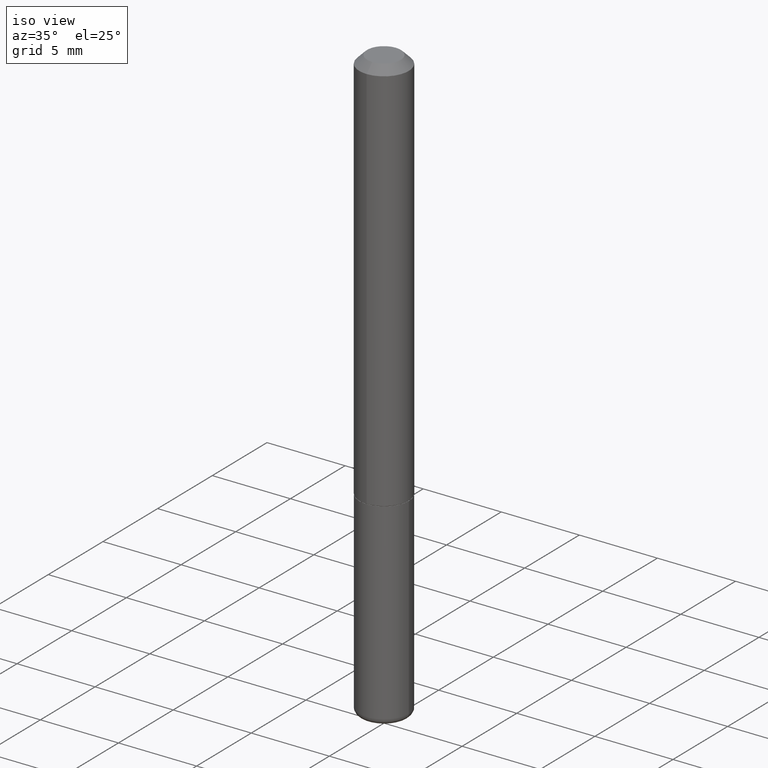
[diagram: clean part render]
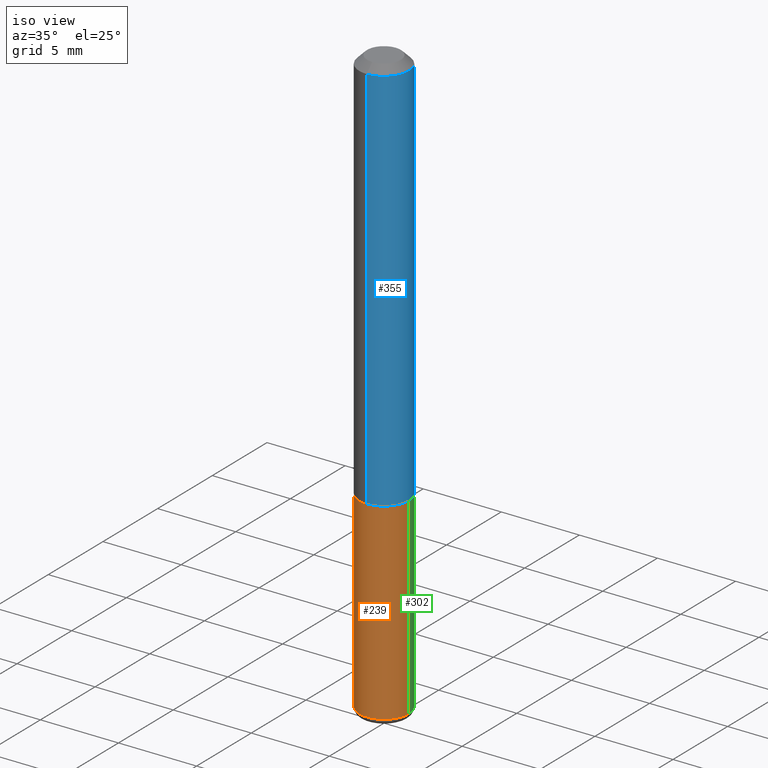
[diagram: same view with three faces highlighted in distinct colors, each labeled with its STEP entity id]
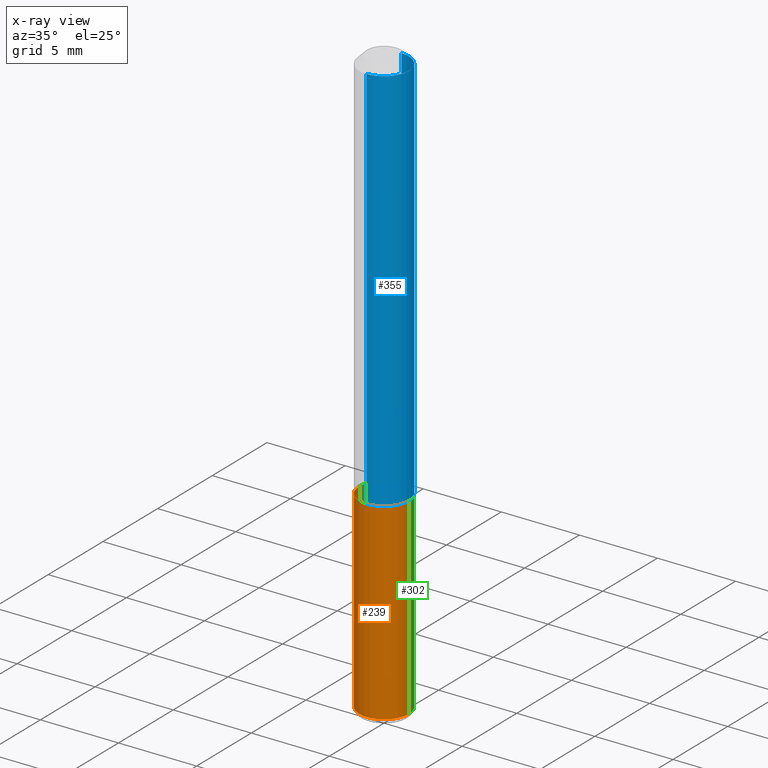
[diagram: x-ray of the same camera — body ghosted, the three highlighted faces saturated]
A machine part, iso view with three faces highlighted in distinct colors.
The next image is the same camera in x-ray (body ghosted, the three faces saturated) — at least one of them is partly hidden behind the body in this view.
Their STEP definitions:

[orange] entity #239 — the highlighted cylindrical surface (edge-blend (fillet) strip) has radius 1.5875 mm, axis along (-0, 0, 1).
#8 = ORIENTED_EDGE ( 'NONE', *, *, #361, .T. ) ;
#23 = DIRECTION ( 'NONE',  ( -2.445468806185136597E-29, 3.491481338843145583E-15, 1.000000000000000000 ) ) ;
#27 = AXIS2_PLACEMENT_3D ( 'NONE', #253, #23, #136 ) ;
#35 = EDGE_CURVE ( 'NONE', #271, #169, #171, .T. ) ;
#75 = AXIS2_PLACEMENT_3D ( 'NONE', #256, #360, #174 ) ;
#78 = EDGE_CURVE ( 'NONE', #290, #169, #199, .T. ) ;
#85 = DIRECTION ( 'NONE',  ( -2.445468806185136877E-29, 3.491481338843145188E-15, 1.000000000000000000 ) ) ;
#103 = ORIENTED_EDGE ( 'NONE', *, *, #284, .F. ) ;
#126 = CARTESIAN_POINT ( 'NONE',  ( -0.06250000000000001388, -4.740760578332009665E-15, -1.485000000000000098 ) ) ;
#133 = DIRECTION ( 'NONE',  ( -2.445468806185136877E-29, 3.491481338843145188E-15, 1.000000000000000000 ) ) ;
#135 = ORIENTED_EDGE ( 'NONE', *, *, #35, .T. ) ;
#136 = DIRECTION ( 'NONE',  ( 1.000000000000000000, -6.982962677686267499E-15, 4.876176775795935793E-29 ) ) ;
#141 = AXIS2_PLACEMENT_3D ( 'NONE', #316, #410, #285 ) ;
#153 = VECTOR ( 'NONE', #133, 39.37007874015748143 ) ;
#162 = VECTOR ( 'NONE', #85, 39.37007874015748143 ) ;
#169 = VERTEX_POINT ( 'NONE', #396 ) ;
#171 = LINE ( 'NONE', #298, #153 ) ;
#174 = DIRECTION ( 'NONE',  ( 1.000000000000000000, -6.982962677686269077E-15, 0.000000000000000000 ) ) ;
#181 = CARTESIAN_POINT ( 'NONE',  ( -0.06250000000000001388, -3.894076353662544935E-15, -0.9999999999999996669 ) ) ;
#199 = CIRCLE ( 'NONE', #75, 0.06250000000000001388 ) ;
#213 = FACE_OUTER_BOUND ( 'NONE', #401, .T. ) ;
#216 = CYLINDRICAL_SURFACE ( 'NONE', #27, 0.06250000000000001388 ) ;
#226 = CIRCLE ( 'NONE', #141, 0.06250000000000001388 ) ;
#239 = ADVANCED_FACE ( 'NONE', ( #213 ), #216, .T. ) ;
#246 = CARTESIAN_POINT ( 'NONE',  ( -0.06250000000000001388, 4.440892098500627148E-16, -3.074334431409317165E-30 ) ) ;
#253 = CARTESIAN_POINT ( 'NONE',  ( 0.000000000000000000, 0.000000000000000000, 0.000000000000000000 ) ) ;
#255 = CARTESIAN_POINT ( 'NONE',  ( 0.06250000000000001388, -5.621284955537463950E-15, -1.485000000000000098 ) ) ;
#256 = CARTESIAN_POINT ( 'NONE',  ( 2.445468806185136036E-29, -3.491481338843144399E-15, -0.9999999999999996669 ) ) ;
#271 = VERTEX_POINT ( 'NONE', #255 ) ;
#284 = EDGE_CURVE ( 'NONE', #321, #290, #345, .T. ) ;
#285 = DIRECTION ( 'NONE',  ( 1.000000000000000000, -6.982962677686261189E-15, 0.000000000000000000 ) ) ;
#290 = VERTEX_POINT ( 'NONE', #181 ) ;
#298 = CARTESIAN_POINT ( 'NONE',  ( 0.06250000000000001388, -4.364351673553918173E-16, 3.047610484872460571E-30 ) ) ;
#316 = CARTESIAN_POINT ( 'NONE',  ( 3.631521177184928138E-29, -5.184849788182071492E-15, -1.485000000000000098 ) ) ;
#321 = VERTEX_POINT ( 'NONE', #126 ) ;
#345 = LINE ( 'NONE', #246, #162 ) ;
#356 = ORIENTED_EDGE ( 'NONE', *, *, #78, .F. ) ;
#360 = DIRECTION ( 'NONE',  ( -2.445468806185136597E-29, 3.491481338843145583E-15, 1.000000000000000000 ) ) ;
#361 = EDGE_CURVE ( 'NONE', #321, #271, #226, .T. ) ;
#396 = CARTESIAN_POINT ( 'NONE',  ( 0.06250000000000001388, -3.927916506198536858E-15, -0.9999999999999996669 ) ) ;
#401 = EDGE_LOOP ( 'NONE', ( #103, #8, #135, #356 ) ) ;
#410 = DIRECTION ( 'NONE',  ( -2.445468806185136597E-29, 3.491481338843145583E-15, 1.000000000000000000 ) ) ;

[blue] entity #355 — the highlighted cylindrical surface (edge-blend (fillet) strip) has radius 1.5875 mm, axis along (-0, 0, 1).
#3 = VERTEX_POINT ( 'NONE', #279 ) ;
#4 = CARTESIAN_POINT ( 'NONE',  ( 2.463521279207835223E-29, -3.458635638134944801E-15, -0.9989999999999998881 ) ) ;
#19 = AXIS2_PLACEMENT_3D ( 'NONE', #4, #394, #143 ) ;
#30 = DIRECTION ( 'NONE',  ( -2.465987266474309438E-29, 3.462097735870816064E-15, 1.000000000000000000 ) ) ;
#39 = CIRCLE ( 'NONE', #83, 0.06249999999999995143 ) ;
#45 = VECTOR ( 'NONE', #30, 39.37007874015748143 ) ;
#56 = CARTESIAN_POINT ( 'NONE',  ( 4.440892098500625669E-16, 0.06250000000000000000, -2.163811084919260040E-16 ) ) ;
#61 = LINE ( 'NONE', #56, #247 ) ;
#68 = EDGE_CURVE ( 'NONE', #3, #395, #388, .T. ) ;
#69 = CARTESIAN_POINT ( 'NONE',  ( -4.364351673553916201E-16, -0.06250000000000000000, 2.163811084919260040E-16 ) ) ;
#76 = DIRECTION ( 'NONE',  ( -2.465987266474309438E-29, 3.462097735870816064E-15, 1.000000000000000000 ) ) ;
#83 = AXIS2_PLACEMENT_3D ( 'NONE', #186, #385, #160 ) ;
#96 = FACE_OUTER_BOUND ( 'NONE', #99, .T. ) ;
#99 = EDGE_LOOP ( 'NONE', ( #257, #197, #364, #304 ) ) ;
#122 = CARTESIAN_POINT ( 'NONE',  ( 0.000000000000000000, 0.000000000000000000, 0.000000000000000000 ) ) ;
#143 = DIRECTION ( 'NONE',  ( -6.982962677686266711E-15, -1.000000000000000000, 4.370956789862817205E-15 ) ) ;
#158 = CYLINDRICAL_SURFACE ( 'NONE', #363, 0.06250000000000000000 ) ;
#160 = DIRECTION ( 'NONE',  ( -6.982962677686265922E-15, -1.000000000000000000, 3.483106191921938315E-15 ) ) ;
#186 = CARTESIAN_POINT ( 'NONE',  ( 4.931974532948636112E-31, -6.924195471741654906E-17, -0.02000000000000006981 ) ) ;
#188 = CARTESIAN_POINT ( 'NONE',  ( 4.440892098500753366E-16, 0.06249999999999659300, -0.9990000000000002212 ) ) ;
#197 = ORIENTED_EDGE ( 'NONE', *, *, #254, .T. ) ;
#207 = CARTESIAN_POINT ( 'NONE',  ( 4.364351673553917187E-16, 0.06249999999999988204, -0.02000000000000028491 ) ) ;
#217 = DIRECTION ( 'NONE',  ( -2.465987266474309438E-29, 3.462097735870816064E-15, 1.000000000000000000 ) ) ;
#227 = LINE ( 'NONE', #69, #45 ) ;
#233 = VERTEX_POINT ( 'NONE', #207 ) ;
#247 = VECTOR ( 'NONE', #76, 39.37007874015748143 ) ;
#254 = EDGE_CURVE ( 'NONE', #395, #233, #61, .T. ) ;
#257 = ORIENTED_EDGE ( 'NONE', *, *, #68, .T. ) ;
#279 = CARTESIAN_POINT ( 'NONE',  ( -4.364351673553674119E-16, -0.06250000000000351108, -0.9989999999999996660 ) ) ;
#280 = CARTESIAN_POINT ( 'NONE',  ( -4.287811248607198352E-16, -0.06250000000000001388, -0.01999999999999985123 ) ) ;
#282 = DIRECTION ( 'NONE',  ( -6.982962677686265922E-15, -1.000000000000000000, 3.462097735870816064E-15 ) ) ;
#304 = ORIENTED_EDGE ( 'NONE', *, *, #408, .F. ) ;
#326 = EDGE_CURVE ( 'NONE', #349, #233, #39, .T. ) ;
#349 = VERTEX_POINT ( 'NONE', #280 ) ;
#355 = ADVANCED_FACE ( 'NONE', ( #96 ), #158, .T. ) ;
#363 = AXIS2_PLACEMENT_3D ( 'NONE', #122, #217, #282 ) ;
#364 = ORIENTED_EDGE ( 'NONE', *, *, #326, .F. ) ;
#385 = DIRECTION ( 'NONE',  ( -2.465987266474309438E-29, 3.462097735870816064E-15, 1.000000000000000000 ) ) ;
#388 = CIRCLE ( 'NONE', #19, 0.06250000000000005551 ) ;
#394 = DIRECTION ( 'NONE',  ( -2.465987266474309438E-29, 3.462097735870816064E-15, 1.000000000000000000 ) ) ;
#395 = VERTEX_POINT ( 'NONE', #188 ) ;
#408 = EDGE_CURVE ( 'NONE', #3, #349, #227, .T. ) ;

[green] entity #302 — the highlighted cylindrical surface (edge-blend (fillet) strip) has radius 1.5875 mm, axis along (-0, 0, 1).
#6 = DIRECTION ( 'NONE',  ( 1.000000000000000000, -6.982962677686269077E-15, 0.000000000000000000 ) ) ;
#22 = DIRECTION ( 'NONE',  ( -2.445468806185136597E-29, 3.491481338843145583E-15, 1.000000000000000000 ) ) ;
#29 = ORIENTED_EDGE ( 'NONE', *, *, #81, .F. ) ;
#35 = EDGE_CURVE ( 'NONE', #271, #169, #171, .T. ) ;
#44 = CIRCLE ( 'NONE', #311, 0.06250000000000001388 ) ;
#50 = DIRECTION ( 'NONE',  ( 1.000000000000000000, -6.982962677686267499E-15, 4.876176775795935793E-29 ) ) ;
#81 = EDGE_CURVE ( 'NONE', #169, #290, #44, .T. ) ;
#85 = DIRECTION ( 'NONE',  ( -2.445468806185136877E-29, 3.491481338843145188E-15, 1.000000000000000000 ) ) ;
#107 = DIRECTION ( 'NONE',  ( -2.445468806185136597E-29, 3.491481338843145583E-15, 1.000000000000000000 ) ) ;
#108 = ORIENTED_EDGE ( 'NONE', *, *, #284, .T. ) ;
#126 = CARTESIAN_POINT ( 'NONE',  ( -0.06250000000000001388, -4.740760578332009665E-15, -1.485000000000000098 ) ) ;
#133 = DIRECTION ( 'NONE',  ( -2.445468806185136877E-29, 3.491481338843145188E-15, 1.000000000000000000 ) ) ;
#138 = ORIENTED_EDGE ( 'NONE', *, *, #193, .T. ) ;
#153 = VECTOR ( 'NONE', #133, 39.37007874015748143 ) ;
#162 = VECTOR ( 'NONE', #85, 39.37007874015748143 ) ;
#164 = CARTESIAN_POINT ( 'NONE',  ( 0.000000000000000000, 0.000000000000000000, 0.000000000000000000 ) ) ;
#169 = VERTEX_POINT ( 'NONE', #396 ) ;
#171 = LINE ( 'NONE', #298, #153 ) ;
#180 = CARTESIAN_POINT ( 'NONE',  ( 3.631521177184928138E-29, -5.184849788182071492E-15, -1.485000000000000098 ) ) ;
#181 = CARTESIAN_POINT ( 'NONE',  ( -0.06250000000000001388, -3.894076353662544935E-15, -0.9999999999999996669 ) ) ;
#187 = FACE_OUTER_BOUND ( 'NONE', #209, .T. ) ;
#193 = EDGE_CURVE ( 'NONE', #271, #321, #231, .T. ) ;
#204 = DIRECTION ( 'NONE',  ( -2.445468806185136597E-29, 3.491481338843145583E-15, 1.000000000000000000 ) ) ;
#209 = EDGE_LOOP ( 'NONE', ( #138, #108, #29, #259 ) ) ;
#231 = CIRCLE ( 'NONE', #333, 0.06250000000000001388 ) ;
#238 = DIRECTION ( 'NONE',  ( 1.000000000000000000, -6.982962677686261189E-15, 0.000000000000000000 ) ) ;
#246 = CARTESIAN_POINT ( 'NONE',  ( -0.06250000000000001388, 4.440892098500627148E-16, -3.074334431409317165E-30 ) ) ;
#252 = CYLINDRICAL_SURFACE ( 'NONE', #286, 0.06250000000000001388 ) ;
#255 = CARTESIAN_POINT ( 'NONE',  ( 0.06250000000000001388, -5.621284955537463950E-15, -1.485000000000000098 ) ) ;
#259 = ORIENTED_EDGE ( 'NONE', *, *, #35, .F. ) ;
#271 = VERTEX_POINT ( 'NONE', #255 ) ;
#284 = EDGE_CURVE ( 'NONE', #321, #290, #345, .T. ) ;
#286 = AXIS2_PLACEMENT_3D ( 'NONE', #164, #22, #50 ) ;
#290 = VERTEX_POINT ( 'NONE', #181 ) ;
#298 = CARTESIAN_POINT ( 'NONE',  ( 0.06250000000000001388, -4.364351673553918173E-16, 3.047610484872460571E-30 ) ) ;
#302 = ADVANCED_FACE ( 'NONE', ( #187 ), #252, .T. ) ;
#311 = AXIS2_PLACEMENT_3D ( 'NONE', #365, #107, #6 ) ;
#321 = VERTEX_POINT ( 'NONE', #126 ) ;
#333 = AXIS2_PLACEMENT_3D ( 'NONE', #180, #204, #238 ) ;
#345 = LINE ( 'NONE', #246, #162 ) ;
#365 = CARTESIAN_POINT ( 'NONE',  ( 2.445468806185136036E-29, -3.491481338843144399E-15, -0.9999999999999996669 ) ) ;
#396 = CARTESIAN_POINT ( 'NONE',  ( 0.06250000000000001388, -3.927916506198536858E-15, -0.9999999999999996669 ) ) ;